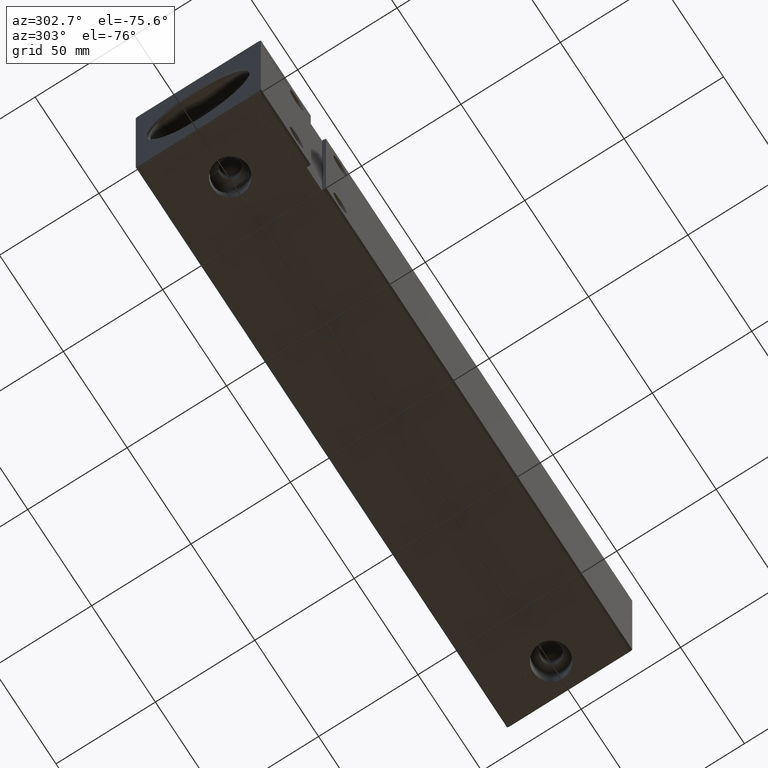
[diagram: clean part render]
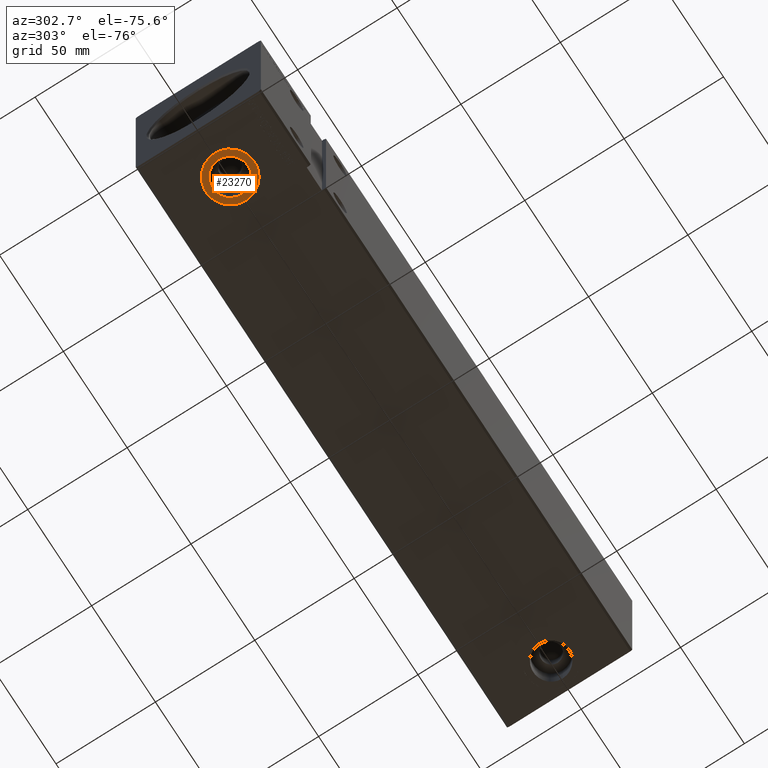
[diagram: same view with one face highlighted and labeled with its STEP entity id]
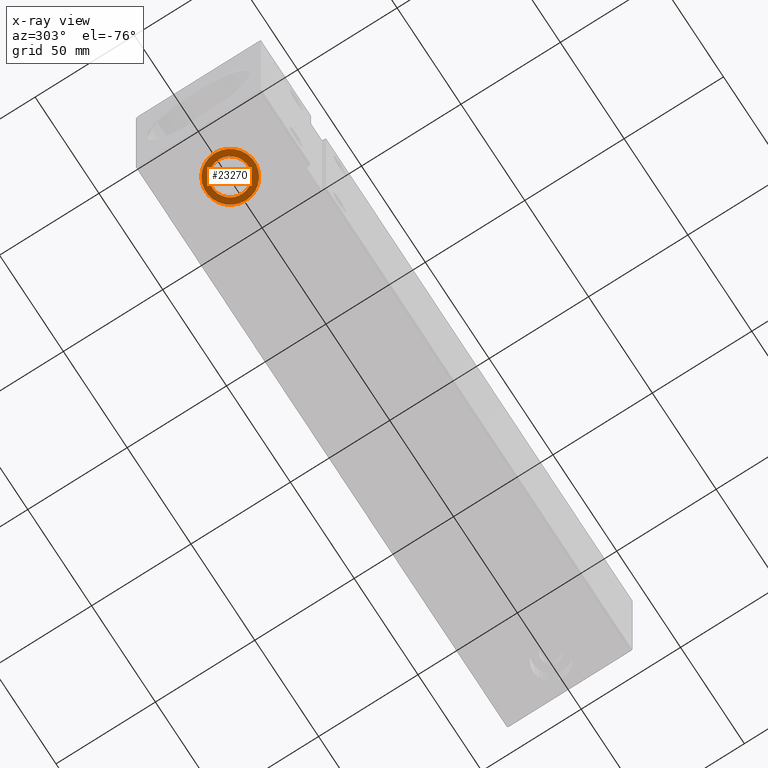
[diagram: x-ray of the same camera — body ghosted, the highlighted face saturated]
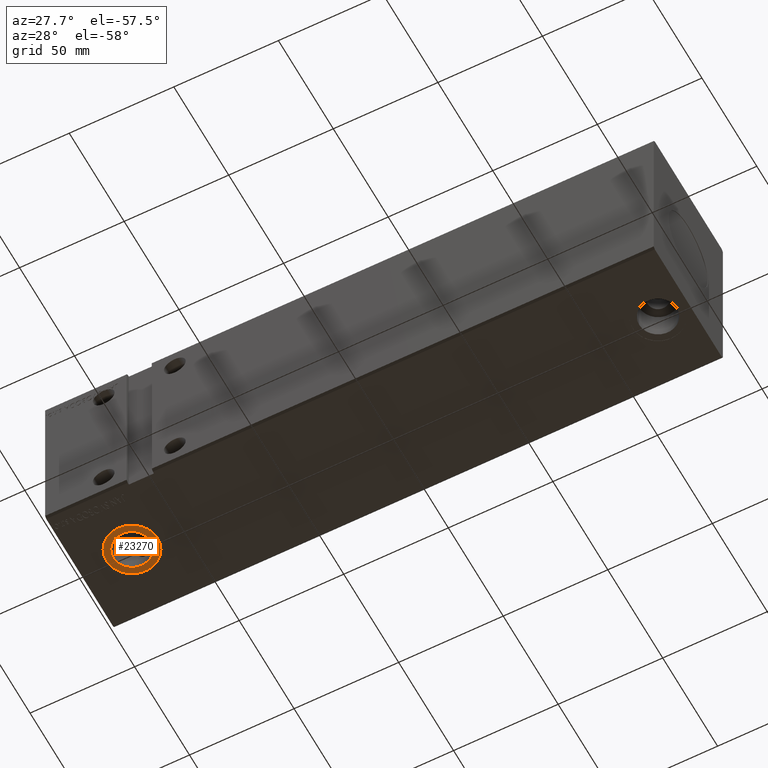
[diagram: same view with one face highlighted and labeled with its STEP entity id]
A machine part, auxiliary view. The second image highlights one B-rep face of the part: STEP entity #23270.
The next image is the same camera in x-ray: the body ghosted, the highlighted face saturated — about 0% of this face is hidden behind the body in this view.
A second angle (auxiliary view) of the same face is appended — the face is thin or edge-on in the first view.
In plain terms, the highlighted planar face has unit normal (0, 0, -1).
Its self-contained STEP definition (entity closure, byte-faithful):
#796 = CIRCLE ( 'NONE', #40450, 9.000000000000001776 ) ;
#1487 = DIRECTION ( 'NONE',  ( 0.000000000000000000, 0.000000000000000000, -1.000000000000000000 ) ) ;
#3567 = CARTESIAN_POINT ( 'NONE',  ( 34.00000000000000000, -1.563571752218929810E-15, -42.40000000000000568 ) ) ;
#5448 = EDGE_CURVE ( 'NONE', #6596, #38454, #20431, .T. ) ;
#6596 = VERTEX_POINT ( 'NONE', #34607 ) ;
#8904 = DIRECTION ( 'NONE',  ( -1.000000000000000000, 0.000000000000000000, 0.000000000000000000 ) ) ;
#9027 = DIRECTION ( 'NONE',  ( -1.000000000000000000, 0.000000000000000000, -0.000000000000000000 ) ) ;
#10317 = VERTEX_POINT ( 'NONE', #25186 ) ;
#10713 = EDGE_CURVE ( 'NONE', #31133, #10317, #13300, .T. ) ;
#10863 = ORIENTED_EDGE ( 'NONE', *, *, #10713, .F. ) ;
#11002 = CARTESIAN_POINT ( 'NONE',  ( 37.25000000000000711, -1.165561542496040578E-15, -42.40000000000000568 ) ) ;
#11527 = EDGE_CURVE ( 'NONE', #38454, #6596, #39060, .T. ) ;
#11607 = CARTESIAN_POINT ( 'NONE',  ( 25.00000000000000000, -2.665753871451547918E-15, -42.40000000000000568 ) ) ;
#11740 = FACE_BOUND ( 'NONE', #36293, .T. ) ;
#11850 = AXIS2_PLACEMENT_3D ( 'NONE', #17229, #1487, #23640 ) ;
#13300 = CIRCLE ( 'NONE', #35097, 9.000000000000001776 ) ;
#14068 = DIRECTION ( 'NONE',  ( -1.000000000000000000, 0.000000000000000000, 0.000000000000000000 ) ) ;
#14767 = DIRECTION ( 'NONE',  ( -1.000000000000000000, 0.000000000000000000, 0.000000000000000000 ) ) ;
#17229 = CARTESIAN_POINT ( 'NONE',  ( 25.00000000000000000, -2.665753871451547918E-15, -42.40000000000000568 ) ) ;
#17460 = DIRECTION ( 'NONE',  ( 0.000000000000000000, 0.000000000000000000, -1.000000000000000000 ) ) ;
#17565 = AXIS2_PLACEMENT_3D ( 'NONE', #40492, #33876, #9027 ) ;
#18078 = CARTESIAN_POINT ( 'NONE',  ( 25.00000000000000000, -2.665753871451547918E-15, -42.40000000000000568 ) ) ;
#20092 = ORIENTED_EDGE ( 'NONE', *, *, #39531, .F. ) ;
#20271 = CARTESIAN_POINT ( 'NONE',  ( 25.00000000000000000, -2.665753871451547918E-15, -42.40000000000000568 ) ) ;
#20431 = CIRCLE ( 'NONE', #11850, 12.25000000000000000 ) ;
#21204 = AXIS2_PLACEMENT_3D ( 'NONE', #18078, #17460, #14767 ) ;
#23270 = ADVANCED_FACE ( 'NONE', ( #11740, #24351 ), #36986, .T. ) ;
#23640 = DIRECTION ( 'NONE',  ( -1.000000000000000000, 0.000000000000000000, 0.000000000000000000 ) ) ;
#24351 = FACE_OUTER_BOUND ( 'NONE', #31736, .T. ) ;
#25186 = CARTESIAN_POINT ( 'NONE',  ( 16.00000000000000000, -2.665753871451547918E-15, -42.40000000000000568 ) ) ;
#25994 = ORIENTED_EDGE ( 'NONE', *, *, #5448, .T. ) ;
#30840 = DIRECTION ( 'NONE',  ( 0.000000000000000000, 0.000000000000000000, -1.000000000000000000 ) ) ;
#31133 = VERTEX_POINT ( 'NONE', #3567 ) ;
#31736 = EDGE_LOOP ( 'NONE', ( #25994, #39429 ) ) ;
#33876 = DIRECTION ( 'NONE',  ( 0.000000000000000000, 0.000000000000000000, -1.000000000000000000 ) ) ;
#34607 = CARTESIAN_POINT ( 'NONE',  ( 12.75000000000000178, -2.665753871451547918E-15, -42.40000000000000568 ) ) ;
#35097 = AXIS2_PLACEMENT_3D ( 'NONE', #11607, #30840, #8904 ) ;
#36293 = EDGE_LOOP ( 'NONE', ( #20092, #10863 ) ) ;
#36986 = PLANE ( 'NONE',  #17565 ) ;
#38454 = VERTEX_POINT ( 'NONE', #11002 ) ;
#38907 = DIRECTION ( 'NONE',  ( 0.000000000000000000, 0.000000000000000000, -1.000000000000000000 ) ) ;
#39060 = CIRCLE ( 'NONE', #21204, 12.25000000000000000 ) ;
#39429 = ORIENTED_EDGE ( 'NONE', *, *, #11527, .T. ) ;
#39531 = EDGE_CURVE ( 'NONE', #10317, #31133, #796, .T. ) ;
#40450 = AXIS2_PLACEMENT_3D ( 'NONE', #20271, #38907, #14068 ) ;
#40492 = CARTESIAN_POINT ( 'NONE',  ( 0.000000000000000000, 0.000000000000000000, -42.40000000000000568 ) ) ;